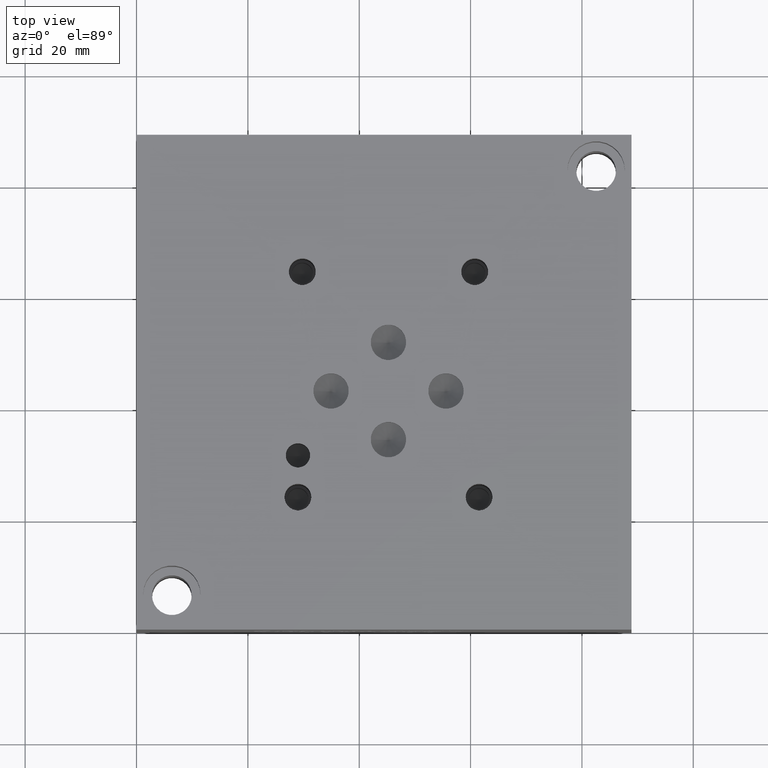
[diagram: clean part render]
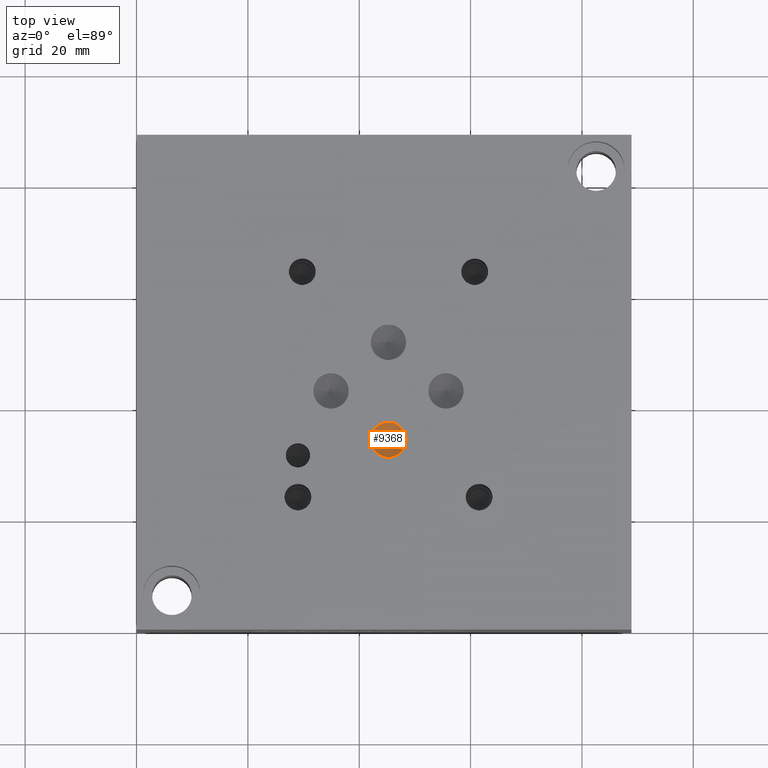
[diagram: same view with one face highlighted and labeled with its STEP entity id]
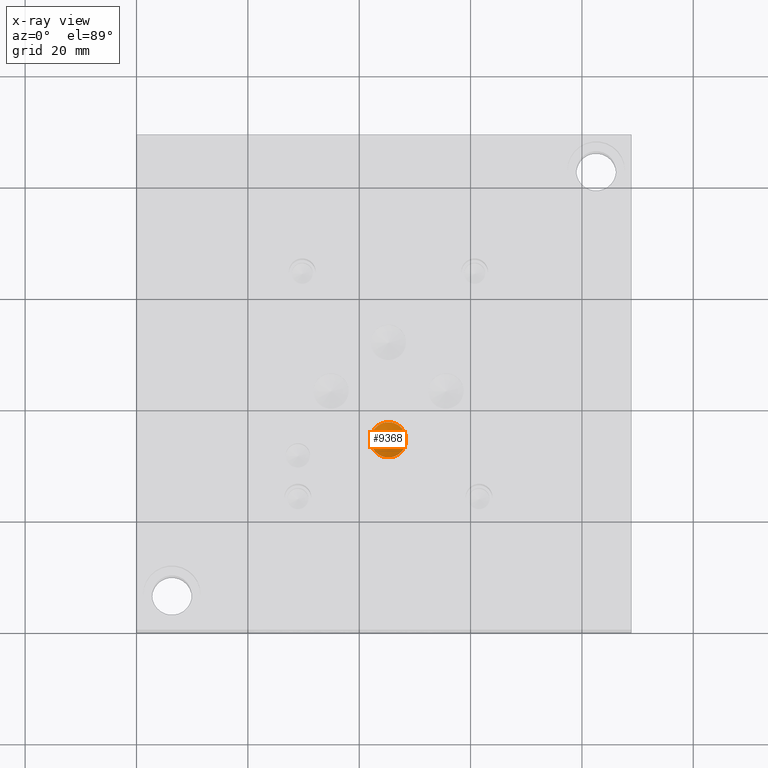
[diagram: x-ray of the same camera — body ghosted, the highlighted face saturated]
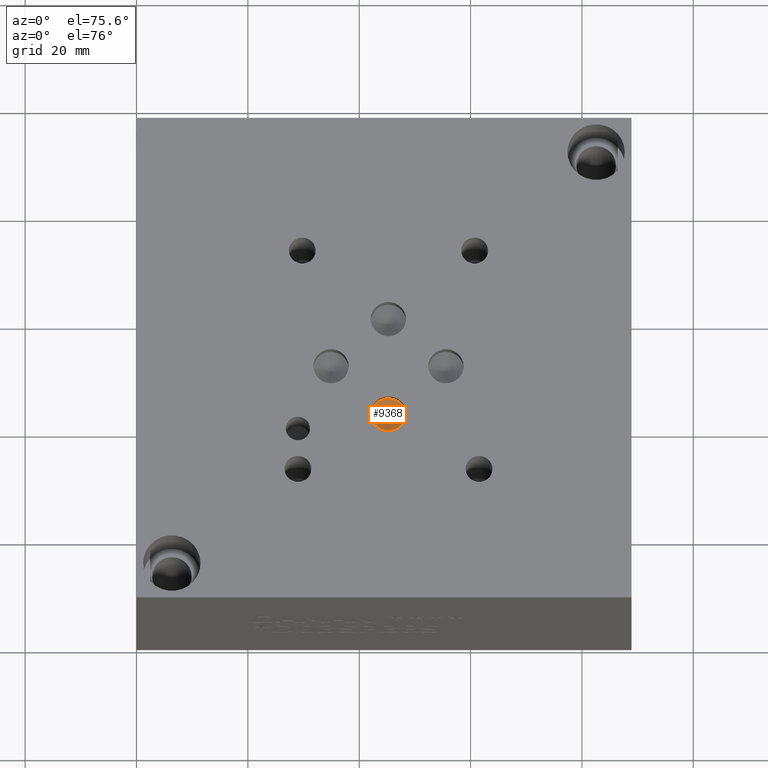
[diagram: same view with one face highlighted and labeled with its STEP entity id]
A machine part, top view. The second image highlights one B-rep face of the part: STEP entity #9368.
The next image is the same camera in x-ray: the body ghosted, the highlighted face saturated — about 0% of this face is hidden behind the body in this view.
A second angle (auxiliary view) of the same face is appended — the face is thin or edge-on in the first view.
In plain terms, the highlighted conical surface has half-angle 60 deg.
Its self-contained STEP definition (entity closure, byte-faithful):
#33=CONICAL_SURFACE('',#9820,1.5875,1.0471975511966);
#176=CIRCLE('',#9821,3.175);
#177=CIRCLE('',#9822,3.175);
#1009=FACE_OUTER_BOUND('',#1541,.T.);
#1541=EDGE_LOOP('',(#8251,#8252,#8253,#8254));
#2437=LINE('',#16090,#3313);
#3313=VECTOR('',#11567,1.5875);
#4455=VERTEX_POINT('',#16086);
#4456=VERTEX_POINT('',#16087);
#4457=VERTEX_POINT('',#16089);
#5738=EDGE_CURVE('',#4455,#4456,#176,.T.);
#5739=EDGE_CURVE('',#4456,#4457,#2437,.T.);
#5740=EDGE_CURVE('',#4456,#4455,#177,.T.);
#8251=ORIENTED_EDGE('',*,*,#5738,.T.);
#8252=ORIENTED_EDGE('',*,*,#5739,.T.);
#8253=ORIENTED_EDGE('',*,*,#5739,.F.);
#8254=ORIENTED_EDGE('',*,*,#5740,.T.);
#9368=ADVANCED_FACE('',(#1009),#33,.F.);
#9820=AXIS2_PLACEMENT_3D('',#16085,#11563,#11564);
#9821=AXIS2_PLACEMENT_3D('',#16088,#11565,#11566);
#9822=AXIS2_PLACEMENT_3D('',#16091,#11568,#11569);
#11563=DIRECTION('center_axis',(0.,0.,1.));
#11564=DIRECTION('ref_axis',(1.,0.,0.));
#11565=DIRECTION('center_axis',(0.,0.,1.));
#11566=DIRECTION('ref_axis',(1.,0.,0.));
#11567=DIRECTION('',(0.866025403784439,1.06057523872491E-16,-0.5));
#11568=DIRECTION('center_axis',(0.,0.,1.));
#11569=DIRECTION('ref_axis',(1.,0.,0.));
#16085=CARTESIAN_POINT('Origin',(45.2374,34.1122,35.3503664476615));
#16086=CARTESIAN_POINT('',(48.4124,34.1122,36.26691));
#16087=CARTESIAN_POINT('',(42.0624,34.1122,36.26691));
#16088=CARTESIAN_POINT('Origin',(45.2374,34.1122,36.26691));
#16089=CARTESIAN_POINT('',(45.2374,34.1122,34.4338228953229));
#16090=CARTESIAN_POINT('',(43.6499,34.1122,35.3503664476615));
#16091=CARTESIAN_POINT('Origin',(45.2374,34.1122,36.26691));